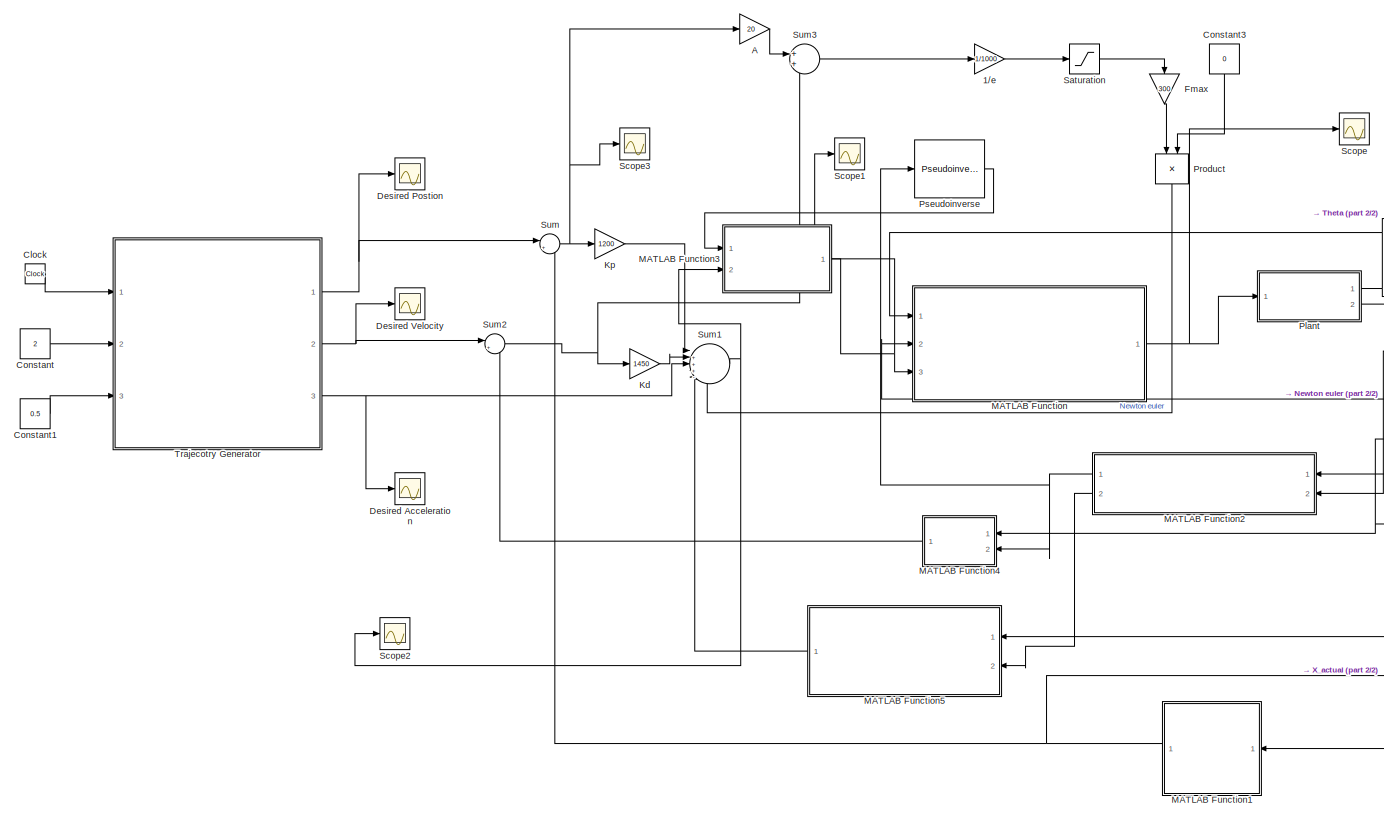
[diagram: root canvas - part 1/2, most of the canvas]
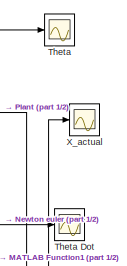
[diagram: root canvas - part 2/2, middle right region]
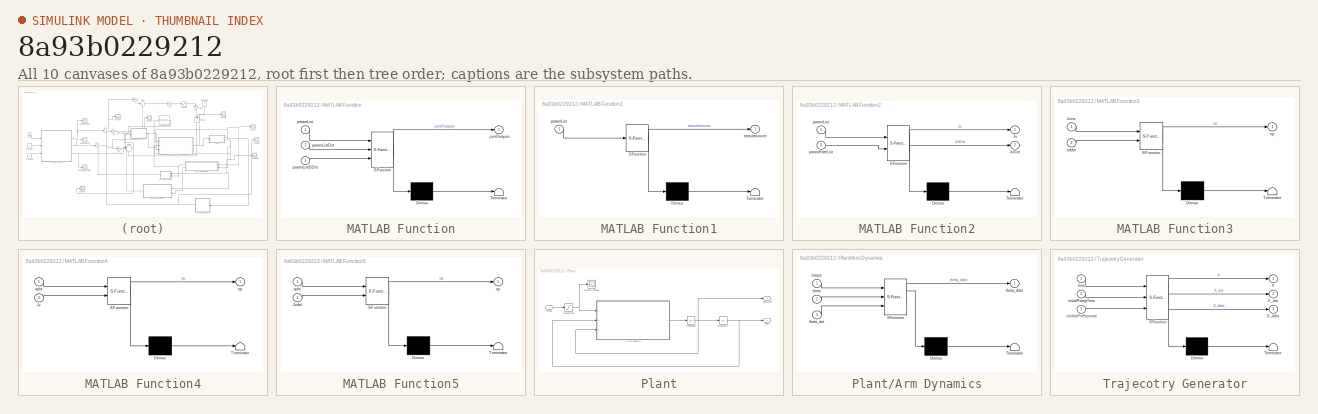
[diagram: thumbnail index - all 10 canvases of the model, root first then tree order]
MODEL slx_8a93b0229212
KIND model
CONFIG AbsTol = auto
CONFIG EnableMultiTasking = on
CONFIG FixedStep = 0.001
CONFIG MaxStep = auto
CONFIG MinStep = auto
CONFIG RelTol = 1e-3
CONFIG SampleTimeConstraint = Unconstrained
CONFIG Solver = ode3
CONFIG SolverName = ode3
CONFIG StartTime = 0.0
CONFIG StopTime = 15
BLOCK [Gain] 1//e
  Gain = 1/1000
  OutDataTypeStr = Inherit: Inherit via internal rule
  ParamDataTypeStr = Inherit: Inherit via internal rule
  SaturateOnIntegerOverflow = off
BLOCK [Gain] A
  Gain = 20
  OutDataTypeStr = Inherit: Inherit via internal rule
  ParamDataTypeStr = Inherit: Inherit via internal rule
  SaturateOnIntegerOverflow = off
BLOCK [Clock] Clock
  Decimation = 1
BLOCK [Constant] Constant
  Value = 2
BLOCK [Constant] Constant1
  Value = 0.5
BLOCK [Constant] Constant3
  Value = 0
BLOCK [Scope] Desired Acceleration
  NumInputPorts = 1
  Ports = [1]
  ScopeSpecificationString = Simulink.scopes.TimeScopeBlockCfg('CurrentConfiguration', extmgr.ConfigurationSet(extmgr.Configuration('Core','General UI',true),extmgr.Configuration('Core','Source UI',true),extmgr.Configuration('Sources','WiredSimulink',true,'DataLoggingVariableName','ScopeData1'),extmgr.Configuration('Visuals','Time Domain',true,'SerializedDisplays',{struct('MinYLimReal','-6.1685','MaxYLimReal','6.1685','YLabel...<+1504ch>
BLOCK [Scope] Desired Postion
  NumInputPorts = 1
  Ports = [1]
  ScopeSpecificationString = Simulink.scopes.TimeScopeBlockCfg('CurrentConfiguration', extmgr.ConfigurationSet(extmgr.Configuration('Core','General UI',true),extmgr.Configuration('Core','Source UI',true),extmgr.Configuration('Sources','WiredSimulink',true,'DataLoggingVariableName','ScopeData2','DataLogging',true,'DataLoggingSaveFormat','Array'),extmgr.Configuration('Visuals','Time Domain',true,'SerializedDisplays',{struct('Mi...<+1575ch>
BLOCK [Scope] Desired Velocity
  NumInputPorts = 1
  Ports = [1]
  ScopeSpecificationString = Simulink.scopes.TimeScopeBlockCfg('CurrentConfiguration', extmgr.ConfigurationSet(extmgr.Configuration('Core','General UI',true),extmgr.Configuration('Core','Source UI',true),extmgr.Configuration('Sources','WiredSimulink',true,'DataLoggingVariableName','ScopeData3'),extmgr.Configuration('Visuals','Time Domain',true,'SerializedDisplays',{struct('MinYLimReal','-1.48949','MaxYLimReal','3.7465','YLabe...<+1499ch>
BLOCK [Gain] Fmax
  Gain = 300
  OutDataTypeStr = Inherit: Inherit via internal rule
  ParamDataTypeStr = Inherit: Inherit via internal rule
  SaturateOnIntegerOverflow = off
BLOCK [Gain] Kd
  Gain = 1450
  OutDataTypeStr = Inherit: Inherit via internal rule
  ParamDataTypeStr = Inherit: Inherit via internal rule
  SaturateOnIntegerOverflow = off
BLOCK [Gain] Kp
  Gain = 1200
  OutDataTypeStr = Inherit: Inherit via internal rule
  ParamDataTypeStr = Inherit: Inherit via internal rule
  SaturateOnIntegerOverflow = off
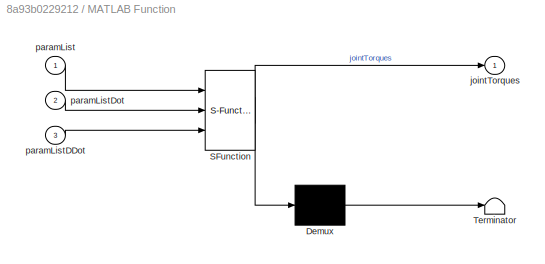
BLOCK [SubSystem] MATLAB Function
  ErrorFcn = Stateflow.Translate.translate
  PermitHierarchicalResolution = ExplicitOnly
  Ports = [3, 1]
  RequestExecContextInheritance = off
  SFBlockType = MATLAB Function
  TreatAsAtomicUnit = on
  Variant = off
BLOCK [Demux] MATLAB Function/ Demux 
  Outputs = 1
  Ports = [1, 1]
BLOCK [S-Function] MATLAB Function/ SFunction 
  EnableBusSupport = on
  FunctionName = sf_sfun
  PortCounts = [3 2]
  Ports = [3, 2]
  SFcnIsStateOwnerBlock = off
  SFunctionDeploymentMode = off
  Tag = Stateflow S-Function Part_3_Template 3
BLOCK [Terminator] MATLAB Function/ Terminator 
BLOCK [Outport] MATLAB Function/jointTorques
  IconDisplay = Port number
BLOCK [Inport] MATLAB Function/paramList
  IconDisplay = Port number
BLOCK [Inport] MATLAB Function/paramListDDot
  IconDisplay = Port number
  Port = 3
BLOCK [Inport] MATLAB Function/paramListDot
  IconDisplay = Port number
  Port = 2
BLOCK [SubSystem] MATLAB Function1
  ErrorFcn = Stateflow.Translate.translate
  PermitHierarchicalResolution = ExplicitOnly
  Ports = [1, 1]
  RequestExecContextInheritance = off
  SFBlockType = MATLAB Function
  TreatAsAtomicUnit = on
  Variant = off
BLOCK [Demux] MATLAB Function1/ Demux 
  Outputs = 1
  Ports = [1, 1]
BLOCK [S-Function] MATLAB Function1/ SFunction 
  EnableBusSupport = on
  FunctionName = sf_sfun
  PortCounts = [1 2]
  Ports = [1, 2]
  SFcnIsStateOwnerBlock = off
  SFunctionDeploymentMode = off
  Tag = Stateflow S-Function Part_3_Template 4
BLOCK [Terminator] MATLAB Function1/ Terminator 
BLOCK [Inport] MATLAB Function1/paramList
  IconDisplay = Port number
BLOCK [Outport] MATLAB Function1/translationvec
  IconDisplay = Port number
BLOCK [SubSystem] MATLAB Function2
  ErrorFcn = Stateflow.Translate.translate
  PermitHierarchicalResolution = ExplicitOnly
  Ports = [2, 2]
  RequestExecContextInheritance = off
  SFBlockType = MATLAB Function
  TreatAsAtomicUnit = on
  Variant = off
BLOCK [Demux] MATLAB Function2/ Demux 
  Outputs = 1
  Ports = [1, 1]
BLOCK [S-Function] MATLAB Function2/ SFunction 
  EnableBusSupport = on
  FunctionName = sf_sfun
  PortCounts = [2 3]
  Ports = [2, 3]
  SFcnIsStateOwnerBlock = off
  SFunctionDeploymentMode = off
  Tag = Stateflow S-Function Part_3_Template 5
BLOCK [Terminator] MATLAB Function2/ Terminator 
BLOCK [Outport] MATLAB Function2/Jv
  IconDisplay = Port number
BLOCK [Outport] MATLAB Function2/JvDot
  IconDisplay = Port number
  Port = 2
BLOCK [Inport] MATLAB Function2/paramList
  IconDisplay = Port number
BLOCK [Inport] MATLAB Function2/paramRateList
  IconDisplay = Port number
  Port = 2
BLOCK [SubSystem] MATLAB Function3
  ErrorFcn = Stateflow.Translate.translate
  PermitHierarchicalResolution = ExplicitOnly
  Ports = [2, 1]
  RequestExecContextInheritance = off
  SFBlockType = MATLAB Function
  TreatAsAtomicUnit = on
  Variant = off
BLOCK [Demux] MATLAB Function3/ Demux 
  Outputs = 1
  Ports = [1, 1]
BLOCK [S-Function] MATLAB Function3/ SFunction 
  EnableBusSupport = on
  FunctionName = sf_sfun
  PortCounts = [2 2]
  Ports = [2, 2]
  SFcnIsStateOwnerBlock = off
  SFunctionDeploymentMode = off
  Tag = Stateflow S-Function Part_3_Template 6
BLOCK [Terminator] MATLAB Function3/ Terminator 
BLOCK [Inport] MATLAB Function3/Jvinv
  IconDisplay = Port number
BLOCK [Outport] MATLAB Function3/op
  IconDisplay = Port number
BLOCK [Inport] MATLAB Function3/xddot
  IconDisplay = Port number
  Port = 2
BLOCK [SubSystem] MATLAB Function4
  ErrorFcn = Stateflow.Translate.translate
  PermitHierarchicalResolution = ExplicitOnly
  Ports = [2, 1]
  RequestExecContextInheritance = off
  SFBlockType = MATLAB Function
  TreatAsAtomicUnit = on
  Variant = off
BLOCK [Demux] MATLAB Function4/ Demux 
  Outputs = 1
  Ports = [1, 1]
BLOCK [S-Function] MATLAB Function4/ SFunction 
  EnableBusSupport = on
  FunctionName = sf_sfun
  PortCounts = [2 2]
  Ports = [2, 2]
  SFcnIsStateOwnerBlock = off
  SFunctionDeploymentMode = off
  Tag = Stateflow S-Function Part_3_Template 7
BLOCK [Terminator] MATLAB Function4/ Terminator 
BLOCK [Inport] MATLAB Function4/Jv
  IconDisplay = Port number
  Port = 2
BLOCK [Outport] MATLAB Function4/op
  IconDisplay = Port number
BLOCK [Inport] MATLAB Function4/qdot
  IconDisplay = Port number
BLOCK [SubSystem] MATLAB Function5
  ErrorFcn = Stateflow.Translate.translate
  PermitHierarchicalResolution = ExplicitOnly
  Ports = [2, 1]
  RequestExecContextInheritance = off
  SFBlockType = MATLAB Function
  TreatAsAtomicUnit = on
  Variant = off
BLOCK [Demux] MATLAB Function5/ Demux 
  Outputs = 1
  Ports = [1, 1]
BLOCK [S-Function] MATLAB Function5/ SFunction 
  EnableBusSupport = on
  FunctionName = sf_sfun
  PortCounts = [2 2]
  Ports = [2, 2]
  SFcnIsStateOwnerBlock = off
  SFunctionDeploymentMode = off
  Tag = Stateflow S-Function Part_3_Template 8
BLOCK [Terminator] MATLAB Function5/ Terminator 
BLOCK [Inport] MATLAB Function5/Jvdot
  IconDisplay = Port number
  Port = 2
BLOCK [Outport] MATLAB Function5/op
  IconDisplay = Port number
BLOCK [Inport] MATLAB Function5/qdot
  IconDisplay = Port number
BLOCK [SubSystem] Plant
  Ports = [1, 2]
  RequestExecContextInheritance = off
  Variant = off
BLOCK [SubSystem] Plant/Arm Dynamics
  ErrorFcn = Stateflow.Translate.translate
  PermitHierarchicalResolution = ExplicitOnly
  Ports = [3, 1]
  RequestExecContextInheritance = off
  SFBlockType = MATLAB Function
  TreatAsAtomicUnit = on
  Variant = off
BLOCK [Demux] Plant/Arm Dynamics/ Demux 
  Outputs = 1
  Ports = [1, 1]
BLOCK [S-Function] Plant/Arm Dynamics/ SFunction 
  EnableBusSupport = on
  FunctionName = sf_sfun
  PortCounts = [3 2]
  Ports = [3, 2]
  SFcnIsStateOwnerBlock = off
  SFunctionDeploymentMode = off
  Tag = Stateflow S-Function Part_3_Template 2
BLOCK [Terminator] Plant/Arm Dynamics/ Terminator 
BLOCK [Inport] Plant/Arm Dynamics/theta
  IconDisplay = Port number
  Port = 2
BLOCK [Outport] Plant/Arm Dynamics/theta_ddot
  IconDisplay = Port number
BLOCK [Inport] Plant/Arm Dynamics/theta_dot
  IconDisplay = Port number
  Port = 3
BLOCK [Inport] Plant/Arm Dynamics/torque
  IconDisplay = Port number
BLOCK [Scope] Plant/Control Torque
  NumInputPorts = 1
  Ports = [1]
  ScopeSpecificationString = Simulink.scopes.TimeScopeBlockCfg('CurrentConfiguration', extmgr.ConfigurationSet(extmgr.Configuration('Core','General UI',true),extmgr.Configuration('Core','Source UI',true),extmgr.Configuration('Sources','WiredSimulink',true,'DataLoggingVariableName','ControlTorque','DataLogging',true),extmgr.Configuration('Visuals','Time Domain',true,'SerializedDisplays',{struct('MinYLimReal','-1.00000','MaxYLi...<+1423ch>
BLOCK [Integrator] Plant/Integrator
  InitialCondition = [0;0;0]
  Ports = [1, 1]
BLOCK [Integrator] Plant/Integrator1
  InitialCondition = [0;0;0]
  Ports = [1, 1]
BLOCK [Saturate] Plant/Saturation
  InputPortMap = u0
  LowerLimit = -300
  Ports = [1, 1]
  UpperLimit = 300
BLOCK [Outport] Plant/Theta
  IconDisplay = Port number
BLOCK [Outport] Plant/Theta_Dot
  IconDisplay = Port number
  Port = 2
BLOCK [Inport] Plant/Torque
  IconDisplay = Port number
BLOCK [Product] Product
  InputSameDT = off
  OutDataTypeStr = Inherit: Inherit via internal rule
  Ports = [2, 1]
  RndMeth = Floor
  SaturateOnIntegerOverflow = off
BLOCK [Reference] Pseudoinverse  REF=dspinverses/Pseudoinverse
  Ports = [1, 1]
  SourceBlock = dspinverses/Pseudoinverse
  SourceProductBaseCode = DS
  SourceProductName = DSP System Toolbox
  SourceType = Pseudoinverse
BLOCK [Saturate] Saturation
  InputPortMap = u0
  LowerLimit = -1
  Ports = [1, 1]
  UpperLimit = 1
BLOCK [Scope] Scope
  NumInputPorts = 1
  Ports = [1]
  ScopeSpecificationString = Simulink.scopes.TimeScopeBlockCfg('CurrentConfiguration', extmgr.ConfigurationSet(extmgr.Configuration('Core','General UI',true),extmgr.Configuration('Core','Source UI',true),extmgr.Configuration('Sources','WiredSimulink',true,'DataLoggingVariableName','ScopeData7'),extmgr.Configuration('Visuals','Time Domain',true,'SerializedDisplays',{struct('MinYLimReal','-595.51963','MaxYLimReal','-88.83804','...<+1503ch>
BLOCK [Scope] Scope1
  NumInputPorts = 1
  Ports = [1]
  ScopeSpecificationString = Simulink.scopes.TimeScopeBlockCfg('CurrentConfiguration', extmgr.ConfigurationSet(extmgr.Configuration('Core','General UI',true),extmgr.Configuration('Core','Source UI',true),extmgr.Configuration('Sources','WiredSimulink',true,'DataLoggingVariableName','ScopeData8'),extmgr.Configuration('Visuals','Time Domain',true,'SerializedDisplays',{struct('MinYLimReal','-211.77852','MaxYLimReal','400.40841','...<+1466ch>
BLOCK [Scope] Scope2
  NumInputPorts = 1
  Ports = [1]
  ScopeSpecificationString = Simulink.scopes.TimeScopeBlockCfg('CurrentConfiguration', extmgr.ConfigurationSet(extmgr.Configuration('Core','General UI',true),extmgr.Configuration('Core','Source UI',true),extmgr.Configuration('Sources','WiredSimulink',true,'DataLoggingVariableName','ScopeData1'),extmgr.Configuration('Visuals','Time Domain',true,'SerializedDisplays',{struct('MinYLimReal','-844.29836','MaxYLimReal','644.40372','...<+1397ch>
BLOCK [Scope] Scope3
  NumInputPorts = 1
  Ports = [1]
  ScopeSpecificationString = Simulink.scopes.TimeScopeBlockCfg('CurrentConfiguration', extmgr.ConfigurationSet(extmgr.Configuration('Core','General UI',true),extmgr.Configuration('Core','Source UI',true),extmgr.Configuration('Sources','WiredSimulink',true,'DataLoggingVariableName','ScopeData2'),extmgr.Configuration('Visuals','Time Domain',true,'SerializedDisplays',{struct('MinYLimReal','-0.28402','MaxYLimReal','0.0562','YLabe...<+1409ch>
BLOCK [Sum] Sum
  IconShape = round
  InputSameDT = off
  Inputs = |+-
  OutDataTypeStr = Inherit: Inherit via internal rule
  Ports = [2, 1]
  SaturateOnIntegerOverflow = off
BLOCK [Sum] Sum1
  IconShape = round
  InputSameDT = off
  Inputs = |+++-+
  OutDataTypeStr = Inherit: Inherit via internal rule
  Ports = [5, 1]
  SaturateOnIntegerOverflow = off
BLOCK [Sum] Sum2
  IconShape = round
  InputSameDT = off
  Inputs = |+-
  OutDataTypeStr = Inherit: Inherit via internal rule
  Ports = [2, 1]
  SaturateOnIntegerOverflow = off
BLOCK [Sum] Sum3
  IconShape = round
  InputSameDT = off
  OutDataTypeStr = Inherit: Inherit via internal rule
  Ports = [2, 1]
  SaturateOnIntegerOverflow = off
BLOCK [Scope] Theta
  NumInputPorts = 1
  Ports = [1]
  ScopeSpecificationString = Simulink.scopes.TimeScopeBlockCfg('CurrentConfiguration', extmgr.ConfigurationSet(extmgr.Configuration('Core','General UI',true),extmgr.Configuration('Core','Source UI',true),extmgr.Configuration('Sources','WiredSimulink',true,'DataLogging',true,'DataLoggingVariableName','ScopeData4','DataLoggingSaveFormat','Array'),extmgr.Configuration('Visuals','Time Domain',true,'SerializedDisplays',{struct('Mi...<+1502ch>
BLOCK [Scope] Theta Dot
  NumInputPorts = 1
  Ports = [1]
  ScopeSpecificationString = Simulink.scopes.TimeScopeBlockCfg('CurrentConfiguration', extmgr.ConfigurationSet(extmgr.Configuration('Core','General UI',true),extmgr.Configuration('Core','Source UI',true),extmgr.Configuration('Sources','WiredSimulink',true,'DataLoggingVariableName','ScopeData5'),extmgr.Configuration('Visuals','Time Domain',true,'SerializedDisplays',{struct('MinYLimReal','-7.37987','MaxYLimReal','8.57064','YLab...<+1465ch>
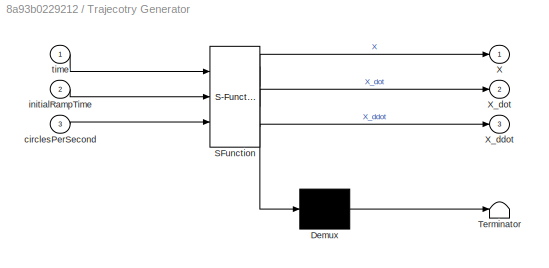
BLOCK [SubSystem] Trajecotry Generator
  ErrorFcn = Stateflow.Translate.translate
  PermitHierarchicalResolution = ExplicitOnly
  Ports = [3, 3]
  RequestExecContextInheritance = off
  SFBlockType = MATLAB Function
  TreatAsAtomicUnit = on
  Variant = off
BLOCK [Demux] Trajecotry Generator/ Demux 
  Outputs = 1
  Ports = [1, 1]
BLOCK [S-Function] Trajecotry Generator/ SFunction 
  EnableBusSupport = on
  FunctionName = sf_sfun
  PortCounts = [3 4]
  Ports = [3, 4]
  SFcnIsStateOwnerBlock = off
  SFunctionDeploymentMode = off
  Tag = Stateflow S-Function Part_3_Template 1
BLOCK [Terminator] Trajecotry Generator/ Terminator 
BLOCK [Outport] Trajecotry Generator/X
  IconDisplay = Port number
BLOCK [Outport] Trajecotry Generator/X_ddot
  IconDisplay = Port number
  Port = 3
BLOCK [Outport] Trajecotry Generator/X_dot
  IconDisplay = Port number
  Port = 2
BLOCK [Inport] Trajecotry Generator/circlesPerSecond
  IconDisplay = Port number
  Port = 3
BLOCK [Inport] Trajecotry Generator/initialRampTime
  IconDisplay = Port number
  Port = 2
BLOCK [Inport] Trajecotry Generator/time
  IconDisplay = Port number
BLOCK [Scope] X_actual
  NumInputPorts = 1
  Ports = [1]
  ScopeSpecificationString = Simulink.scopes.TimeScopeBlockCfg('CurrentConfiguration', extmgr.ConfigurationSet(extmgr.Configuration('Core','General UI',true),extmgr.Configuration('Core','Source UI',true),extmgr.Configuration('Sources','WiredSimulink',true,'DataLoggingVariableName','ScopeData6','DataLogging',true,'DataLoggingSaveFormat','Array'),extmgr.Configuration('Visuals','Time Domain',true,'SerializedDisplays',{struct('Mi...<+1468ch>
LINE 1//e:1 -> Saturation:1
LINE A:1 -> Sum3:1
LINE Clock:1 -> Trajecotry Generator:1
LINE Constant1:1 -> Trajecotry Generator:3
LINE Constant3:1 -> Product:2
LINE Constant:1 -> Trajecotry Generator:2
LINE Fmax:1 -> Product:1
LINE Kd:1 -> Sum1:2
LINE Kp:1 -> Sum1:1
NET MATLAB Function1:1 -> Sum:2, X_actual:1
NET MATLAB Function2:1 -> MATLAB Function4:2, Pseudoinverse:1
LINE MATLAB Function2:2 -> MATLAB Function5:2
NET MATLAB Function3:1 -> MATLAB Function:3, Scope1:1
LINE MATLAB Function4:1 -> Sum2:2
LINE MATLAB Function5:1 -> Sum1:4
NET MATLAB Function:1 -> Plant:1, Scope:1
LINE Plant/Arm Dynamics:1 -> Plant/Integrator:1
NET Plant/Integrator1:1 -> Plant/Arm Dynamics:2, Plant/Theta:1
NET Plant/Integrator:1 -> Plant/Arm Dynamics:3, Plant/Integrator1:1, Plant/Theta_Dot:1
NET Plant/Saturation:1 -> Plant/Arm Dynamics:1, Plant/Control Torque:1
LINE Plant/Torque:1 -> Plant/Saturation:1
NET Plant:1 -> MATLAB Function1:1, MATLAB Function2:1, MATLAB Function:1, Theta:1
NET Plant:2 -> MATLAB Function2:2, MATLAB Function4:1, MATLAB Function5:1, MATLAB Function:2, Theta Dot:1
LINE Product:1 -> Sum1:5
LINE Pseudoinverse:1 -> MATLAB Function3:1
LINE Saturation:1 -> Fmax:1
NET Sum1:1 -> MATLAB Function3:2, Scope2:1
NET Sum2:1 -> Kd:1, Sum3:2
LINE Sum3:1 -> 1//e:1
NET Sum:1 -> A:1, Kp:1, Scope3:1
NET Trajecotry Generator:1 -> Desired Postion:1, Sum:1
NET Trajecotry Generator:2 -> Desired Velocity:1, Sum2:1
NET Trajecotry Generator:3 -> Desired Acceleration:1, Sum1:3
note: NET lines group one-source signal fan-out (src -> all destinations, sorted); 1:1 wires keep LINE
CHART Trajecotry Generator states=1 transitions=1
  STATE_LABEL 'eML_blk_kernel()'
  STATE_LABEL 'SCRIPT:\nfunction [X, X_dot, X_ddot] = fcn(time, initialRampTime, circlesPerSecond)\n%#codegen\n\npersistent a0 a1 a2 a3;\n\nW = circlesPerSecond*2*pi;\n\nif isempty(a0)\n       \n    t = initialRampTime;\n    Ainv = [1,      0,     0,     0\n        0,      0,     1,     0\n        -3/t^2,  3/t^2,  -2/t,  -1/t\n        2/t^3, -2/t^3, 1/t^2, 1/t^2];\n    \n    X0 = [1.5;0;0];\n    Xf = X_t(0,W);\n    V0 = [0;0;0];\n...<+814ch>'
CHART Plant/Arm Dynamics states=1 transitions=1
  STATE_LABEL 'eML_blk_kernel()'
  STATE_LABEL 'SCRIPT:\nfunction theta_ddot = fcn(torque, theta, theta_dot)\n%#codegen\n\n% define physical parmaeters of the arm\ndensity = 2.70e3;\n \nr = 0.05;\nL0 = 0.25;\nL1 = 1;\nL2 = .5;\n \nm1 = density*(r^2*pi*L0);\nm2 = density*(r^2*pi*L1);\nm3 = density*(r^2*pi*L2);\n\ncd = .5;\ncs = 3;\n\ng = 9.8;\n\n% unpack theta and theta_dot\nt1 = theta(1);\nt2 = theta(2);\nt3 = theta(3);\n\ntd1 = theta_dot(1);\ntd2 = theta_dot(2);\ntd3 = t...<+2956ch>'
CHART MATLAB Function states=1 transitions=1
  STATE_LABEL 'eML_blk_kernel()'
  STATE_LABEL 'SCRIPT:\n% FUNCTION NAME : newtonEuler\n% DESCRIPTION   : This function computes the inverse dynamics of a serial link manipulator\n%                 and provides the velocity jacobian and its rate of change.\n%\n% OUTPUT        : The output gives the the joint torques at each joint,\n%                 velocity Jacobian and time derivative of velocity\n%                 Jacobian.\n%\n% INPUT         : The ...<+3608ch>'
CHART MATLAB Function1 states=1 transitions=1
  STATE_LABEL 'eML_blk_kernel()'
  STATE_LABEL 'SCRIPT:\n% dhFwdKine: Returns the forward kinematics of a manipulator with the provided DH parameter\n%\n% H = dhFwdKine(linkList, paramList) Returns the forward kinematics of a manipulator \n% with the provided DH parameter set\n\n% H ( homogenous transformation matrix 4-by-4)\n%\n% linkList = linkList is to be an array of links each created by createLink\n% function \n% paramList = paramList is to be an a...<+1144ch>'
CHART MATLAB Function2 states=1 transitions=1
  STATE_LABEL 'eML_blk_kernel()'
  STATE_LABEL 'SCRIPT:\nfunction [Jv, JvDot] = velocityJacobian(paramList, paramRateList)\n%VELOCITYJACOBIAN Summary of this function goes here\n%\n% [Jv, JvDot] = velocityJacobian(linkList, paramList,paramRateList) Now a more description\n%  multiline description of the function would be appropriate.\n%\n% Jv = velcoity jacobian\n% Jvdot = velocity hessian\n%\n% linkList = the current joint angles/distances. (an Nx1 arra...<+2712ch>'
CHART MATLAB Function3 states=1 transitions=1
  STATE_LABEL 'eML_blk_kernel()'
  STATE_LABEL 'SCRIPT:\nfunction op =jvinverse(Jvinv,xddot)\nJvinv1=Jvinv(1:3,1:3);\nop=Jvinv1*xddot;\nend'
CHART MATLAB Function4 states=1 transitions=1
  STATE_LABEL 'eML_blk_kernel()'
  STATE_LABEL 'SCRIPT:\nfunction op = jvmultiply(qdot, Jv)\n\nmult=Jv*qdot;\nop=mult(1:3);\nend\n'
CHART MATLAB Function5 states=1 transitions=1
  STATE_LABEL 'eML_blk_kernel()'
  STATE_LABEL 'SCRIPT:\nfunction op = jvdotmultiply(qdot, Jvdot)\n\nmult=Jvdot*qdot;\nop=mult(1:3,1);\n\n\nend\n'
